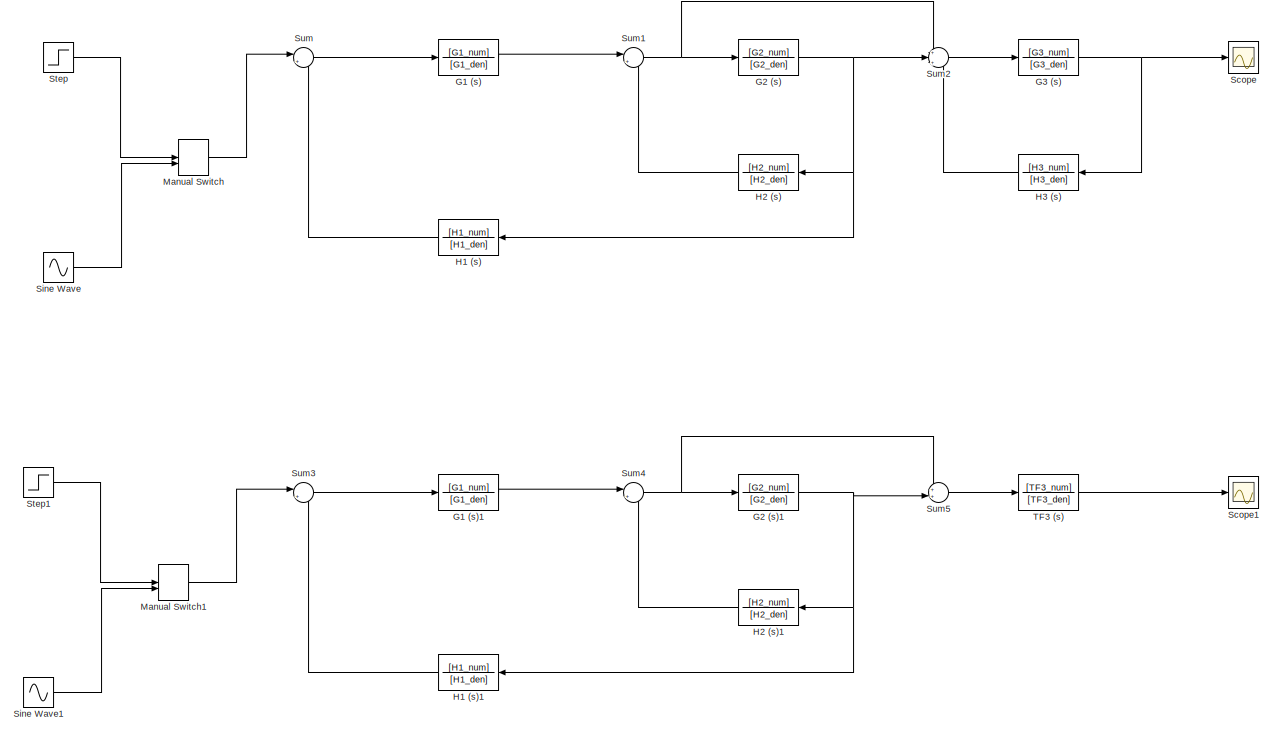
[diagram: root canvas - part 1/3, full width, top band]
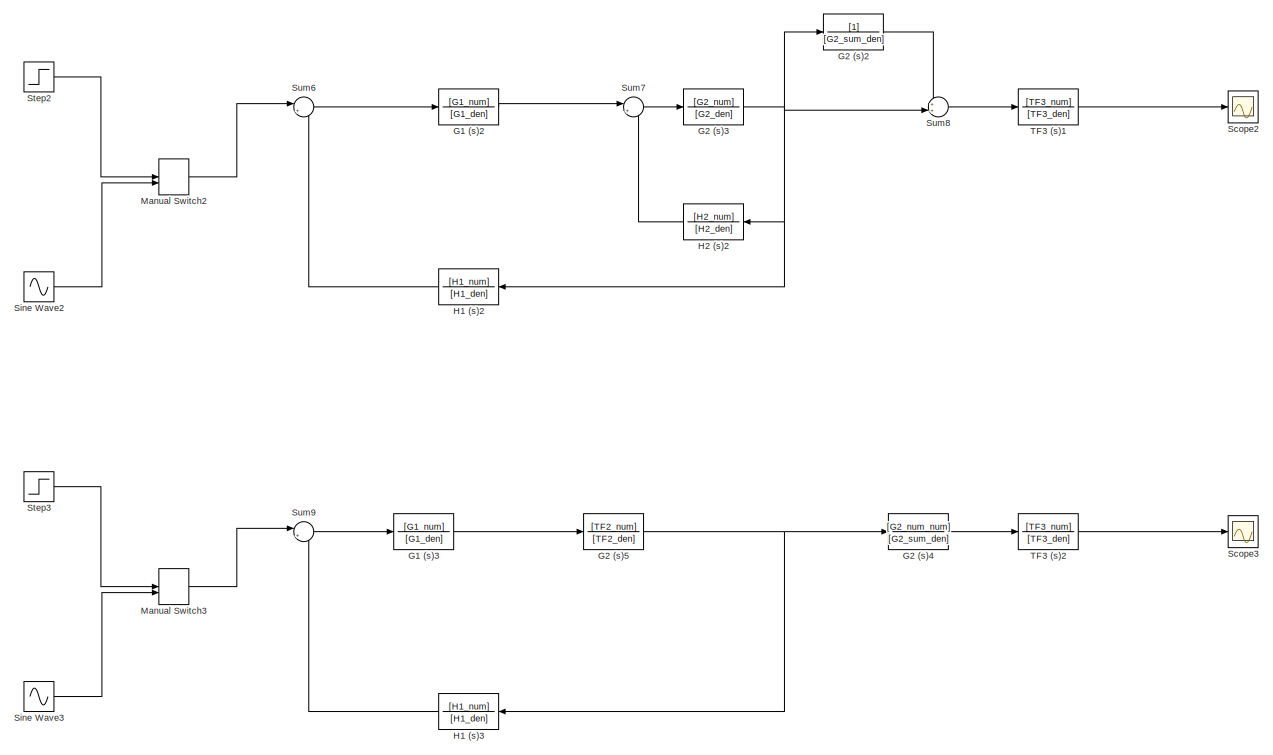
[diagram: root canvas - part 2/3, full width, middle band]
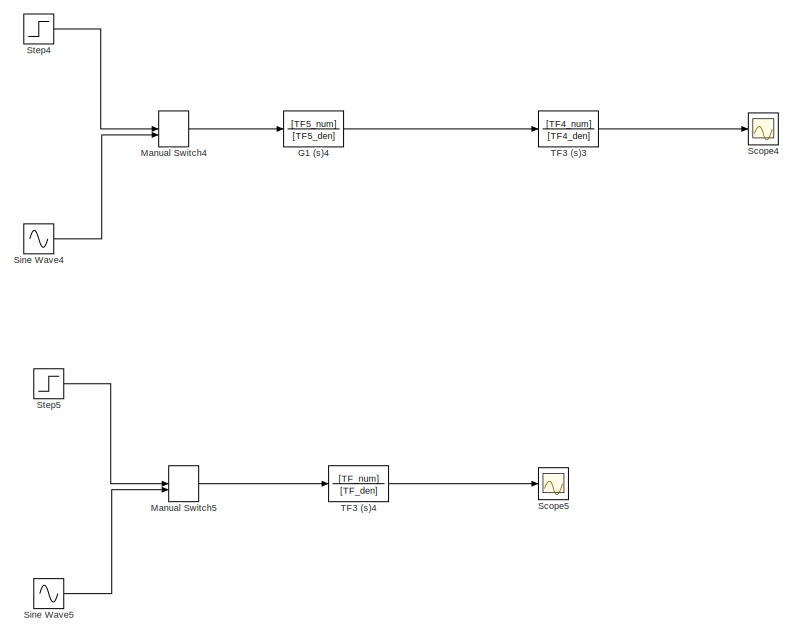
[diagram: root canvas - part 3/3, bottom left region]
MODEL slx_32da40a69575
KIND model
CONFIG AbsTol = auto
CONFIG EnableMultiTasking = off
CONFIG FixedStep = auto
CONFIG MaxStep = auto
CONFIG MinStep = auto
CONFIG RelTol = 1e-3
CONFIG SampleTimeConstraint = Unconstrained
CONFIG SolverName = VariableStepAuto
CONFIG StartTime = 0.0
CONFIG StopTime = 20.0
BLOCK [TransferFcn] G1 (s)
  Denominator = [G1_den]
  Numerator = [G1_num]
BLOCK [TransferFcn] G1 (s)1
  Denominator = [G1_den]
  Numerator = [G1_num]
BLOCK [TransferFcn] G1 (s)2
  Denominator = [G1_den]
  Numerator = [G1_num]
BLOCK [TransferFcn] G1 (s)3
  Denominator = [G1_den]
  Numerator = [G1_num]
BLOCK [TransferFcn] G1 (s)4
  Denominator = [TF5_den]
  Numerator = [TF5_num]
BLOCK [TransferFcn] G2 (s)
  Denominator = [G2_den]
  Numerator = [G2_num]
BLOCK [TransferFcn] G2 (s)1
  Denominator = [G2_den]
  Numerator = [G2_num]
BLOCK [TransferFcn] G2 (s)2
  Denominator = [G2_sum_den]
BLOCK [TransferFcn] G2 (s)3
  Denominator = [G2_den]
  Numerator = [G2_num]
BLOCK [TransferFcn] G2 (s)4
  Denominator = [G2_sum_den]
  Numerator = [G2_num_num]
BLOCK [TransferFcn] G2 (s)5
  Denominator = [TF2_den]
  Numerator = [TF2_num]
BLOCK [TransferFcn] G3 (s)
  Denominator = [G3_den]
  Numerator = [G3_num]
BLOCK [TransferFcn] H1 (s)
  Denominator = [H1_den]
  Numerator = [H1_num]
BLOCK [TransferFcn] H1 (s)1
  Denominator = [H1_den]
  Numerator = [H1_num]
BLOCK [TransferFcn] H1 (s)2
  Denominator = [H1_den]
  Numerator = [H1_num]
BLOCK [TransferFcn] H1 (s)3
  Denominator = [H1_den]
  Numerator = [H1_num]
BLOCK [TransferFcn] H2 (s)
  Denominator = [H2_den]
  Numerator = [H2_num]
BLOCK [TransferFcn] H2 (s)1
  Denominator = [H2_den]
  Numerator = [H2_num]
BLOCK [TransferFcn] H2 (s)2
  Denominator = [H2_den]
  Numerator = [H2_num]
BLOCK [TransferFcn] H3 (s)
  Denominator = [H3_den]
  Numerator = [H3_num]
BLOCK [ManualSwitch] Manual Switch
  CurrentSetting = 0
BLOCK [ManualSwitch] Manual Switch1
  CurrentSetting = 0
BLOCK [ManualSwitch] Manual Switch2
  CurrentSetting = 0
BLOCK [ManualSwitch] Manual Switch3
  CurrentSetting = 0
BLOCK [ManualSwitch] Manual Switch4
  CurrentSetting = 0
BLOCK [ManualSwitch] Manual Switch5
  CurrentSetting = 0
BLOCK [Scope] Scope
  Floating = off
  NumInputPorts = 1
  ScopeSpecificationString = Simulink.scopes.TimeScopeBlockCfg('CurrentConfiguration', extmgr.ConfigurationSet(extmgr.Configuration('Core','General UI',true),extmgr.Configuration('Core','Source UI',true),extmgr.Configuration('Sources','WiredSimulink',true),extmgr.Configuration('Visuals','Time Domain',true,'SerializedDisplays',{struct('MinYLimReal','-808318762.14787','MaxYLimReal','89813196.45657','YLabelReal','','MinYLimMag',...<+1531ch>
BLOCK [Scope] Scope1
  Floating = off
  NumInputPorts = 1
  ScopeSpecificationString = Simulink.scopes.TimeScopeBlockCfg('CurrentConfiguration', extmgr.ConfigurationSet(extmgr.Configuration('Core','General UI',true),extmgr.Configuration('Core','Source UI',true),extmgr.Configuration('Sources','WiredSimulink',true,'DataLoggingVariableName','ScopeData1'),extmgr.Configuration('Visuals','Time Domain',true,'SerializedDisplays',{struct('MinYLimReal','-808318762.14786','MaxYLimReal','898131...<+1545ch>
BLOCK [Scope] Scope2
  Floating = off
  NumInputPorts = 1
  ScopeSpecificationString = Simulink.scopes.TimeScopeBlockCfg('CurrentConfiguration', extmgr.ConfigurationSet(extmgr.Configuration('Core','General UI',true),extmgr.Configuration('Core','Source UI',true),extmgr.Configuration('Sources','WiredSimulink',true,'DataLoggingVariableName','ScopeData2'),extmgr.Configuration('Visuals','Time Domain',true,'SerializedDisplays',{struct('MinYLimReal','-295385553.24784','MaxYLimReal','328206...<+1546ch>
BLOCK [Scope] Scope3
  Floating = off
  NumInputPorts = 1
  ScopeSpecificationString = Simulink.scopes.TimeScopeBlockCfg('CurrentConfiguration', extmgr.ConfigurationSet(extmgr.Configuration('Core','General UI',true),extmgr.Configuration('Core','Source UI',true),extmgr.Configuration('Sources','WiredSimulink',true,'DataLoggingVariableName','ScopeData3'),extmgr.Configuration('Visuals','Time Domain',true,'SerializedDisplays',{struct('MinYLimReal','-295385553.24784','MaxYLimReal','328206...<+1546ch>
BLOCK [Scope] Scope4
  Floating = off
  NumInputPorts = 1
  ScopeSpecificationString = Simulink.scopes.TimeScopeBlockCfg('CurrentConfiguration', extmgr.ConfigurationSet(extmgr.Configuration('Core','General UI',true),extmgr.Configuration('Core','Source UI',true),extmgr.Configuration('Sources','WiredSimulink',true,'DataLoggingVariableName','ScopeData4'),extmgr.Configuration('Visuals','Time Domain',true,'SerializedDisplays',{struct('MinYLimReal','-592197265.38056','MaxYLimReal','657996...<+1546ch>
BLOCK [Scope] Scope5
  Floating = off
  NumInputPorts = 1
  ScopeSpecificationString = Simulink.scopes.TimeScopeBlockCfg('CurrentConfiguration', extmgr.ConfigurationSet(extmgr.Configuration('Core','General UI',true),extmgr.Configuration('Core','Source UI',true),extmgr.Configuration('Sources','WiredSimulink',true,'DataLoggingVariableName','ScopeData5'),extmgr.Configuration('Visuals','Time Domain',true,'SerializedDisplays',{struct('MinYLimReal','-592197265.38056','MaxYLimReal','657996...<+1546ch>
BLOCK [Sin] Sine Wave
  SampleTime = 0
BLOCK [Sin] Sine Wave1
  SampleTime = 0
BLOCK [Sin] Sine Wave2
  SampleTime = 0
BLOCK [Sin] Sine Wave3
  SampleTime = 0
BLOCK [Sin] Sine Wave4
  SampleTime = 0
BLOCK [Sin] Sine Wave5
  SampleTime = 0
BLOCK [Step] Step
  SampleTime = 0
BLOCK [Step] Step1
  SampleTime = 0
BLOCK [Step] Step2
  SampleTime = 0
BLOCK [Step] Step3
  SampleTime = 0
BLOCK [Step] Step4
  SampleTime = 0
BLOCK [Step] Step5
  SampleTime = 0
BLOCK [Sum] Sum
  Inputs = |+-
BLOCK [Sum] Sum1
  Inputs = |+-
BLOCK [Sum] Sum2
  Inputs = +|+-
BLOCK [Sum] Sum3
  Inputs = |+-
BLOCK [Sum] Sum4
  Inputs = |+-
BLOCK [Sum] Sum5
  Inputs = ++|
BLOCK [Sum] Sum6
  Inputs = |+-
BLOCK [Sum] Sum7
  Inputs = |+-
BLOCK [Sum] Sum8
  Inputs = ++|
BLOCK [Sum] Sum9
  Inputs = |+-
BLOCK [TransferFcn] TF3 (s)
  Denominator = [TF3_den]
  Numerator = [TF3_num]
BLOCK [TransferFcn] TF3 (s)1
  Denominator = [TF3_den]
  Numerator = [TF3_num]
BLOCK [TransferFcn] TF3 (s)2
  Denominator = [TF3_den]
  Numerator = [TF3_num]
BLOCK [TransferFcn] TF3 (s)3
  Denominator = [TF4_den]
  Numerator = [TF4_num]
BLOCK [TransferFcn] TF3 (s)4
  Denominator = [TF_den]
  Numerator = [TF_num]
LINE G1 (s)1:1 -> Sum4:1
LINE G1 (s)2:1 -> Sum7:1
LINE G1 (s)3:1 -> G2 (s)5:1
LINE G1 (s)4:1 -> TF3 (s)3:1
LINE G1 (s):1 -> Sum1:1
NET G2 (s)1:1 -> H1 (s)1:1, H2 (s)1:1, Sum5:2
LINE G2 (s)2:1 -> Sum8:1
NET G2 (s)3:1 -> G2 (s)2:1, H1 (s)2:1, H2 (s)2:1, Sum8:2
LINE G2 (s)4:1 -> TF3 (s)2:1
NET G2 (s)5:1 -> G2 (s)4:1, H1 (s)3:1
NET G2 (s):1 -> H1 (s):1, H2 (s):1, Sum2:2
NET G3 (s):1 -> H3 (s):1, Scope:1
LINE H1 (s)1:1 -> Sum3:2
LINE H1 (s)2:1 -> Sum6:2
LINE H1 (s)3:1 -> Sum9:2
LINE H1 (s):1 -> Sum:2
LINE H2 (s)1:1 -> Sum4:2
LINE H2 (s)2:1 -> Sum7:2
LINE H2 (s):1 -> Sum1:2
LINE H3 (s):1 -> Sum2:3
LINE Manual Switch1:1 -> Sum3:1
LINE Manual Switch2:1 -> Sum6:1
LINE Manual Switch3:1 -> Sum9:1
LINE Manual Switch4:1 -> G1 (s)4:1
LINE Manual Switch5:1 -> TF3 (s)4:1
LINE Manual Switch:1 -> Sum:1
LINE Sine Wave1:1 -> Manual Switch1:2
LINE Sine Wave2:1 -> Manual Switch2:2
LINE Sine Wave3:1 -> Manual Switch3:2
LINE Sine Wave4:1 -> Manual Switch4:2
LINE Sine Wave5:1 -> Manual Switch5:2
LINE Sine Wave:1 -> Manual Switch:2
LINE Step1:1 -> Manual Switch1:1
LINE Step2:1 -> Manual Switch2:1
LINE Step3:1 -> Manual Switch3:1
LINE Step4:1 -> Manual Switch4:1
LINE Step5:1 -> Manual Switch5:1
LINE Step:1 -> Manual Switch:1
NET Sum1:1 -> G2 (s):1, Sum2:1
LINE Sum2:1 -> G3 (s):1
LINE Sum3:1 -> G1 (s)1:1
NET Sum4:1 -> G2 (s)1:1, Sum5:1
LINE Sum5:1 -> TF3 (s):1
LINE Sum6:1 -> G1 (s)2:1
LINE Sum7:1 -> G2 (s)3:1
LINE Sum8:1 -> TF3 (s)1:1
LINE Sum9:1 -> G1 (s)3:1
LINE Sum:1 -> G1 (s):1
LINE TF3 (s)1:1 -> Scope2:1
LINE TF3 (s)2:1 -> Scope3:1
LINE TF3 (s)3:1 -> Scope4:1
LINE TF3 (s)4:1 -> Scope5:1
LINE TF3 (s):1 -> Scope1:1
note: NET lines group one-source signal fan-out (src -> all destinations, sorted); 1:1 wires keep LINE
